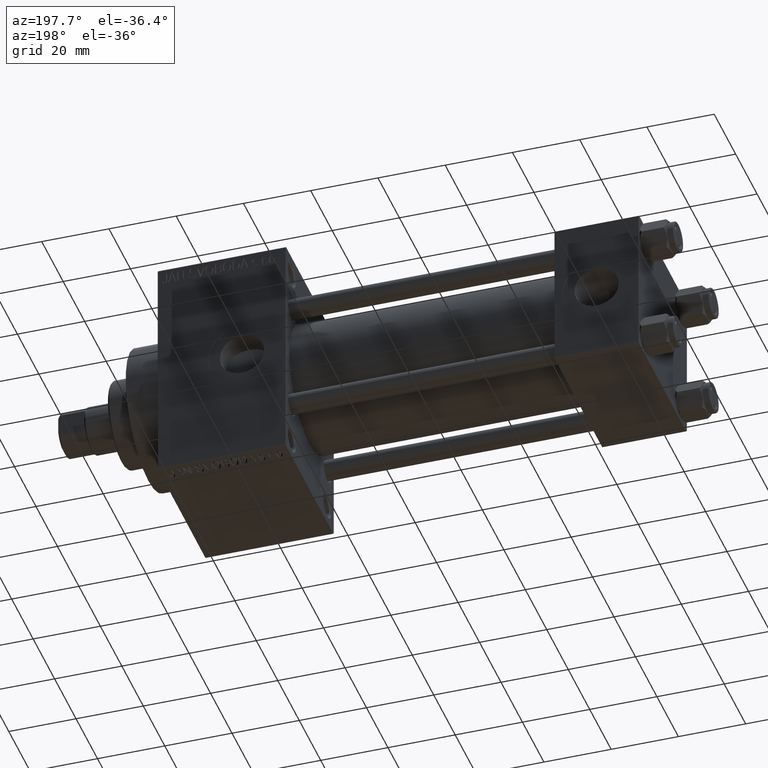
[diagram: clean part render]
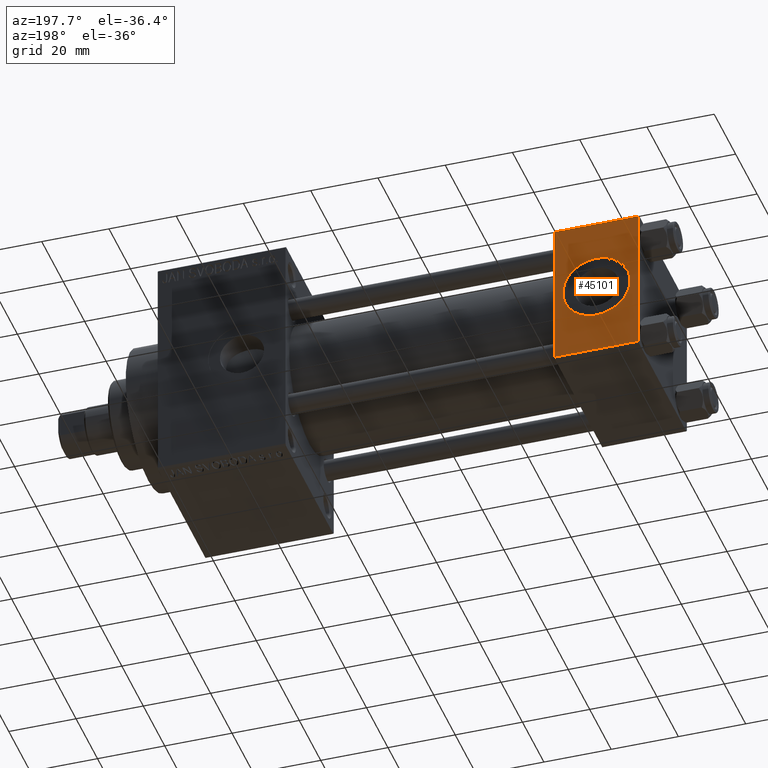
[diagram: same view with one face highlighted and labeled with its STEP entity id]
A machine part, auxiliary view. The second image highlights one B-rep face of the part: STEP entity #45101.
In plain terms, the highlighted planar face has unit normal (0, 1, 0).
Its self-contained STEP definition (entity closure, byte-faithful):
#44 = AXIS2_PLACEMENT_3D ( 'NONE', #44950, #22541, #29515 ) ;
#859 = ORIENTED_EDGE ( 'NONE', *, *, #18174, .F. ) ;
#2412 = CARTESIAN_POINT ( 'NONE',  ( 0.000000000000000000, 22.50000000000000000, 21.99999999999999645 ) ) ;
#2913 = CARTESIAN_POINT ( 'NONE',  ( 12.50000000000000000, 22.50000000000000000, 0.000000000000000000 ) ) ;
#3067 = CARTESIAN_POINT ( 'NONE',  ( 25.00000000000000000, 22.50000000000000000, 21.99999999999999645 ) ) ;
#3201 = EDGE_CURVE ( 'NONE', #11258, #14144, #10795, .T. ) ;
#4844 = EDGE_LOOP ( 'NONE', ( #46171, #33453, #49316, #33062 ) ) ;
#6910 = LINE ( 'NONE', #10671, #9356 ) ;
#7007 = EDGE_CURVE ( 'NONE', #11400, #29952, #13552, .T. ) ;
#8121 = CARTESIAN_POINT ( 'NONE',  ( 12.50000000000000178, 22.50000000000000000, -9.999999999999996447 ) ) ;
#8483 = VERTEX_POINT ( 'NONE', #44565 ) ;
#9356 = VECTOR ( 'NONE', #41554, 1000.000000000000000 ) ;
#9593 = AXIS2_PLACEMENT_3D ( 'NONE', #2913, #44286, #47774 ) ;
#9867 = VECTOR ( 'NONE', #36551, 1000.000000000000000 ) ;
#10671 = CARTESIAN_POINT ( 'NONE',  ( 25.00000000000000000, 22.50000000000000000, -21.99999999999998224 ) ) ;
#10795 = LINE ( 'NONE', #3067, #9867 ) ;
#11258 = VERTEX_POINT ( 'NONE', #2412 ) ;
#11345 = CARTESIAN_POINT ( 'NONE',  ( 25.00000000000000000, 22.50000000000000000, 21.99999999999999645 ) ) ;
#11400 = VERTEX_POINT ( 'NONE', #8121 ) ;
#11505 = ORIENTED_EDGE ( 'NONE', *, *, #7007, .F. ) ;
#13256 = DIRECTION ( 'NONE',  ( 0.000000000000000000, 0.000000000000000000, 1.000000000000000000 ) ) ;
#13552 = CIRCLE ( 'NONE', #9593, 9.999999999999996447 ) ;
#14144 = VERTEX_POINT ( 'NONE', #11345 ) ;
#18174 = EDGE_CURVE ( 'NONE', #29952, #11400, #40106, .T. ) ;
#18298 = FACE_OUTER_BOUND ( 'NONE', #4844, .T. ) ;
#19427 = VERTEX_POINT ( 'NONE', #35473 ) ;
#20424 = LINE ( 'NONE', #28390, #37983 ) ;
#20759 = CARTESIAN_POINT ( 'NONE',  ( 12.50000000000000000, 22.50000000000000000, 0.000000000000000000 ) ) ;
#21391 = CARTESIAN_POINT ( 'NONE',  ( 0.000000000000000000, 22.50000000000000000, 22.50000000000000355 ) ) ;
#22283 = FACE_BOUND ( 'NONE', #30110, .T. ) ;
#22541 = DIRECTION ( 'NONE',  ( -0.000000000000000000, 1.000000000000000000, 0.000000000000000000 ) ) ;
#22695 = EDGE_CURVE ( 'NONE', #11258, #8483, #36097, .T. ) ;
#23455 = VECTOR ( 'NONE', #24892, 1000.000000000000000 ) ;
#24892 = DIRECTION ( 'NONE',  ( 0.000000000000000000, 0.000000000000000000, -1.000000000000000000 ) ) ;
#26580 = AXIS2_PLACEMENT_3D ( 'NONE', #20759, #47401, #13256 ) ;
#28390 = CARTESIAN_POINT ( 'NONE',  ( 25.00000000000000000, 22.50000000000000000, 22.50000000000000355 ) ) ;
#29515 = DIRECTION ( 'NONE',  ( 0.000000000000000000, -0.000000000000000000, 1.000000000000000000 ) ) ;
#29908 = EDGE_CURVE ( 'NONE', #14144, #19427, #20424, .T. ) ;
#29952 = VERTEX_POINT ( 'NONE', #45029 ) ;
#29975 = EDGE_CURVE ( 'NONE', #19427, #8483, #6910, .T. ) ;
#30110 = EDGE_LOOP ( 'NONE', ( #859, #11505 ) ) ;
#33062 = ORIENTED_EDGE ( 'NONE', *, *, #3201, .T. ) ;
#33453 = ORIENTED_EDGE ( 'NONE', *, *, #29975, .T. ) ;
#35473 = CARTESIAN_POINT ( 'NONE',  ( 25.00000000000000000, 22.50000000000000000, -21.99999999999996803 ) ) ;
#36097 = LINE ( 'NONE', #21391, #23455 ) ;
#36551 = DIRECTION ( 'NONE',  ( 1.000000000000000000, 0.000000000000000000, 0.000000000000000000 ) ) ;
#37737 = PLANE ( 'NONE',  #44 ) ;
#37983 = VECTOR ( 'NONE', #43584, 1000.000000000000000 ) ;
#40106 = CIRCLE ( 'NONE', #26580, 9.999999999999996447 ) ;
#41554 = DIRECTION ( 'NONE',  ( -1.000000000000000000, 0.000000000000000000, 0.000000000000000000 ) ) ;
#43584 = DIRECTION ( 'NONE',  ( 0.000000000000000000, 0.000000000000000000, -1.000000000000000000 ) ) ;
#44286 = DIRECTION ( 'NONE',  ( 0.000000000000000000, 1.000000000000000000, 0.000000000000000000 ) ) ;
#44565 = CARTESIAN_POINT ( 'NONE',  ( 0.000000000000000000, 22.50000000000000000, -21.99999999999996803 ) ) ;
#44950 = CARTESIAN_POINT ( 'NONE',  ( 25.00000000000000000, 22.50000000000000000, 22.50000000000000355 ) ) ;
#45029 = CARTESIAN_POINT ( 'NONE',  ( 12.50000000000000000, 22.50000000000000000, 9.999999999999996447 ) ) ;
#45101 = ADVANCED_FACE ( 'NONE', ( #22283, #18298 ), #37737, .T. ) ;
#46171 = ORIENTED_EDGE ( 'NONE', *, *, #29908, .T. ) ;
#47401 = DIRECTION ( 'NONE',  ( 0.000000000000000000, 1.000000000000000000, 0.000000000000000000 ) ) ;
#47774 = DIRECTION ( 'NONE',  ( 0.000000000000000000, 0.000000000000000000, 1.000000000000000000 ) ) ;
#49316 = ORIENTED_EDGE ( 'NONE', *, *, #22695, .F. ) ;